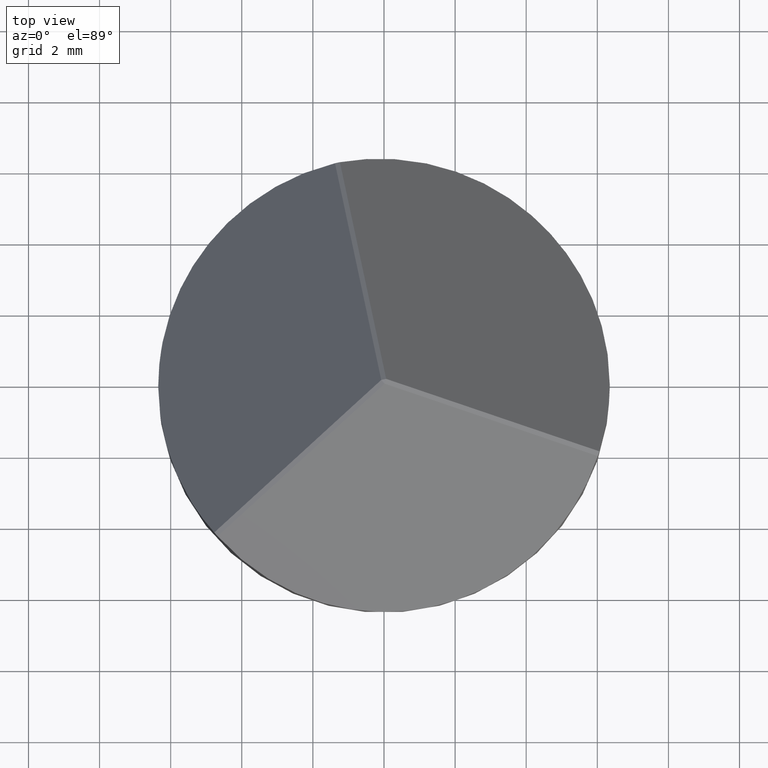
[diagram: clean part render]
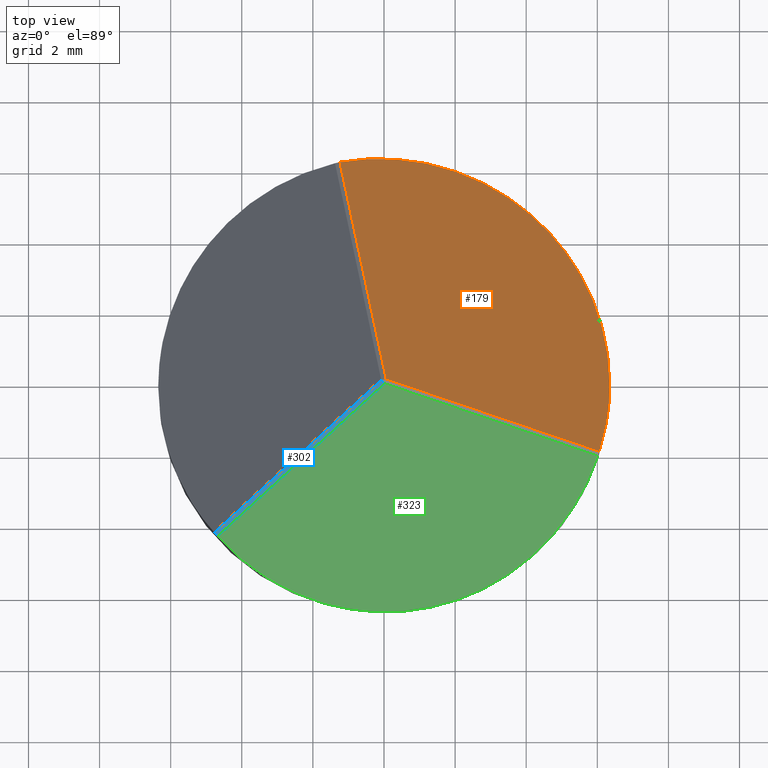
[diagram: same view with three faces highlighted in distinct colors, each labeled with its STEP entity id]
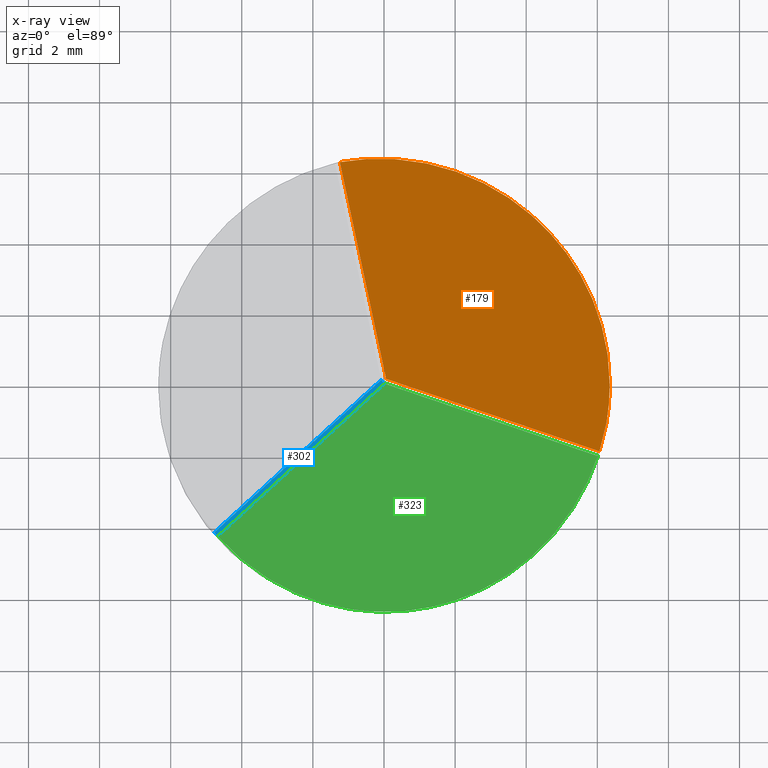
[diagram: x-ray of the same camera — body ghosted, the three highlighted faces saturated]
A machine part, top view with three faces highlighted in distinct colors.
The next image is the same camera in x-ray (body ghosted, the three faces saturated) — at least one of them is partly hidden behind the body in this view.
Their STEP definitions:

[orange] entity #179 — the highlighted planar face has unit normal (0.6077, 0.5453, 0.5774).
#4 = EDGE_CURVE ( 'NONE', #5, #20, #69, .T. ) ;
#5 = VERTEX_POINT ( 'NONE', #224 ) ;
#7 = PLANE ( 'NONE',  #146 ) ;
#15 = ORIENTED_EDGE ( 'NONE', *, *, #40, .T. ) ;
#20 = VERTEX_POINT ( 'NONE', #174 ) ;
#22 = LINE ( 'NONE', #194, #233 ) ;
#29 = DIRECTION ( 'NONE',  ( 0.7760903269836917362, -0.2536739462952649071, -0.5773502691896258421 ) ) ;
#40 = EDGE_CURVE ( 'NONE', #20, #166, #120, .T. ) ;
#62 = CARTESIAN_POINT ( 'NONE',  ( 6.349999999999999645, -0.6476245182123647748, 3.417607508736823618 ) ) ;
#64 = CARTESIAN_POINT ( 'NONE',  ( 3.329848234806675578, 2.987642285018690114, 3.163376020178194636 ) ) ;
#69 =( BOUNDED_CURVE ( )  B_SPLINE_CURVE ( 3, ( #311, #117, #62, #198 ),
 .UNSPECIFIED., .F., .F. ) 
 B_SPLINE_CURVE_WITH_KNOTS ( ( 4, 4 ),
 ( 5.247123525991987059, 5.551902276905597233 ),
 .UNSPECIFIED. ) 
 CURVE ( )  GEOMETRIC_REPRESENTATION_ITEM ( )  RATIONAL_B_SPLINE_CURVE ( ( 1.000000000000000000, 0.9922741279781082113, 0.9922741279781082113, 1.000000000000000000 ) ) 
 REPRESENTATION_ITEM ( '' )  );
#91 = VERTEX_POINT ( 'NONE', #316 ) ;
#103 = DIRECTION ( 'NONE',  ( 0.1683570817218965066, -0.7989509119468813925, 0.5773502691896256200 ) ) ;
#117 = CARTESIAN_POINT ( 'NONE',  ( 6.251690436881996327, -1.287743840205808121, 4.125649633596847110 ) ) ;
#120 =( BOUNDED_CURVE ( )  B_SPLINE_CURVE ( 3, ( #177, #127, #128, #351 ),
 .UNSPECIFIED., .F., .T. ) 
 B_SPLINE_CURVE_WITH_KNOTS ( ( 4, 4 ),
 ( 5.551902276905597233, 7.319247088367185405 ),
 .UNSPECIFIED. ) 
 CURVE ( )  GEOMETRIC_REPRESENTATION_ITEM ( )  RATIONAL_B_SPLINE_CURVE ( ( 1.000000000000000000, 0.7562109254666702363, 0.7562109254666702363, 1.000000000000000000 ) ) 
 REPRESENTATION_ITEM ( '' )  );
#127 = CARTESIAN_POINT ( 'NONE',  ( 6.349999999999997868, 4.327731766911852240, -1.281354842135801420 ) ) ;
#128 = CARTESIAN_POINT ( 'NONE',  ( 3.004345022847742186, 7.072882950397804791, -0.3522861678321642098 ) ) ;
#139 = LINE ( 'NONE', #247, #168 ) ;
#146 = AXIS2_PLACEMENT_3D ( 'NONE', #64, #292, #350 ) ;
#164 = EDGE_LOOP ( 'NONE', ( #346, #307, #358, #15 ) ) ;
#166 = VERTEX_POINT ( 'NONE', #237 ) ;
#168 = VECTOR ( 'NONE', #103, 1000.000000000000000 ) ;
#174 = CARTESIAN_POINT ( 'NONE',  ( 6.349999999999999645, 7.776507174585692163E-16, 2.805960210696949897 ) ) ;
#177 = CARTESIAN_POINT ( 'NONE',  ( 6.349999999999999645, 7.776507174585692163E-16, 2.805960210696949897 ) ) ;
#179 = ADVANCED_FACE ( 'NONE', ( #262 ), #7, .T. ) ;
#194 = CARTESIAN_POINT ( 'NONE',  ( 4.235462525477924345, -1.310016928385321133, 6.269017013437423458 ) ) ;
#198 = CARTESIAN_POINT ( 'NONE',  ( 6.349999999999999645, 7.776507174585692163E-16, 2.805960210696949897 ) ) ;
#224 = CARTESIAN_POINT ( 'NONE',  ( 6.057349891955519539, -1.905521526098945984, 4.913675856748688453 ) ) ;
#233 = VECTOR ( 'NONE', #29, 1000.000000000000114 ) ;
#237 = CARTESIAN_POINT ( 'NONE',  ( -1.240062539693432386, 6.227739951029511722, 4.913675856748684900 ) ) ;
#247 = CARTESIAN_POINT ( 'NONE',  ( -0.8448409661450687613, 4.352186909969169903, 6.269017013437423458 ) ) ;
#262 = FACE_OUTER_BOUND ( 'NONE', #164, .T. ) ;
#273 = EDGE_CURVE ( 'NONE', #166, #91, #139, .T. ) ;
#292 = DIRECTION ( 'NONE',  ( 0.6077332452617950631, 0.5452769656516157637, 0.5773502691896260641 ) ) ;
#307 = ORIENTED_EDGE ( 'NONE', *, *, #347, .T. ) ;
#311 = CARTESIAN_POINT ( 'NONE',  ( 6.057349891955519539, -1.905521526098945984, 4.913675856748688453 ) ) ;
#316 = CARTESIAN_POINT ( 'NONE',  ( 0.06077332452617782710, 0.05452769656515735197, 9.374658006696654056 ) ) ;
#346 = ORIENTED_EDGE ( 'NONE', *, *, #273, .T. ) ;
#347 = EDGE_CURVE ( 'NONE', #91, #5, #22, .T. ) ;
#350 = DIRECTION ( 'NONE',  ( 0.6887517733186869773, 0.000000000000000000, -0.7249972377536095802 ) ) ;
#351 = CARTESIAN_POINT ( 'NONE',  ( -1.240062539693432386, 6.227739951029511722, 4.913675856748684900 ) ) ;
#358 = ORIENTED_EDGE ( 'NONE', *, *, #4, .T. ) ;

[blue] entity #302 — the highlighted planar face has unit normal (0.4297, 0.3856, -0.8165).
#1 = LINE ( 'NONE', #305, #44 ) ;
#9 = CARTESIAN_POINT ( 'NONE',  ( -4.773349735908086977, -4.187795637170729002, 4.913675856748671578 ) ) ;
#26 = ORIENTED_EDGE ( 'NONE', *, *, #112, .F. ) ;
#44 = VECTOR ( 'NONE', #144, 1000.000000000000000 ) ;
#45 = DIRECTION ( 'NONE',  ( 0.6077332452617950631, 0.5452769656516159857, 0.5773502691896258421 ) ) ;
#46 = FACE_OUTER_BOUND ( 'NONE', #148, .T. ) ;
#48 = CARTESIAN_POINT ( 'NONE',  ( -4.678904995037518333, -4.293058122994954040, 4.913675856748721316 ) ) ;
#56 = ORIENTED_EDGE ( 'NONE', *, *, #315, .F. ) ;
#57 = CARTESIAN_POINT ( 'NONE',  ( -3.252239202108308636, -3.013009679648218420, 6.269017013437423458 ) ) ;
#87 = VERTEX_POINT ( 'NONE', #236 ) ;
#90 = DIRECTION ( 'NONE',  ( -0.6077332452617949521, -0.5452769656516159857, -0.5773502691896258421 ) ) ;
#96 = VECTOR ( 'NONE', #45, 999.9999999999998863 ) ;
#102 = VECTOR ( 'NONE', #284, 1000.000000000000114 ) ;
#112 = EDGE_CURVE ( 'NONE', #216, #333, #205, .T. ) ;
#113 = LINE ( 'NONE', #279, #102 ) ;
#119 = PLANE ( 'NONE',  #227 ) ;
#132 = CARTESIAN_POINT ( 'NONE',  ( -3.346683942978864401, -2.907747193824007592, 6.269017013437424346 ) ) ;
#144 = DIRECTION ( 'NONE',  ( -0.6678251671697826852, 0.7443181753085515995, 1.225326322964467107E-14 ) ) ;
#148 = EDGE_LOOP ( 'NONE', ( #163, #246, #26, #56 ) ) ;
#158 = LINE ( 'NONE', #132, #96 ) ;
#163 = ORIENTED_EDGE ( 'NONE', *, *, #356, .T. ) ;
#169 = CARTESIAN_POINT ( 'NONE',  ( -4.773349735908086977, -4.187795637170729002, 4.913675856748671578 ) ) ;
#205 =( BOUNDED_CURVE ( )  B_SPLINE_CURVE ( 3, ( #353, #313, #291, #9 ),
 .UNSPECIFIED., .F., .F. ) 
 B_SPLINE_CURVE_WITH_KNOTS ( ( 4, 4 ),
 ( 6.272049537170597766, 6.294321077188597791 ),
 .UNSPECIFIED. ) 
 CURVE ( )  GEOMETRIC_REPRESENTATION_ITEM ( )  RATIONAL_B_SPLINE_CURVE ( ( 1.000000000000000000, 0.9999586653025819283, 0.9999586653025819283, 1.000000000000000000 ) ) 
 REPRESENTATION_ITEM ( '' )  );
#216 = VERTEX_POINT ( 'NONE', #48 ) ;
#227 = AXIS2_PLACEMENT_3D ( 'NONE', #57, #228, #90 ) ;
#228 = DIRECTION ( 'NONE',  ( 0.4297322988771166696, 0.3855690400370883619, -0.8164965809277260345 ) ) ;
#236 = CARTESIAN_POINT ( 'NONE',  ( 0.01683570817218900048, -0.07989509119468835019, 9.374658006696654056 ) ) ;
#238 = EDGE_CURVE ( 'NONE', #333, #309, #158, .T. ) ;
#246 = ORIENTED_EDGE ( 'NONE', *, *, #238, .F. ) ;
#255 = CARTESIAN_POINT ( 'NONE',  ( -0.07760903269836713636, 0.02536739462952273053, 9.374658006696655832 ) ) ;
#279 = CARTESIAN_POINT ( 'NONE',  ( -3.252239202108307747, -3.013009679648218864, 6.269017013437423458 ) ) ;
#284 = DIRECTION ( 'NONE',  ( -0.6077332452617949521, -0.5452769656516160968, -0.5773502691896258421 ) ) ;
#291 = CARTESIAN_POINT ( 'NONE',  ( -4.742259540638737114, -4.223232986133281130, 4.913304656743203935 ) ) ;
#302 = ADVANCED_FACE ( 'NONE', ( #46 ), #119, .F. ) ;
#305 = CARTESIAN_POINT ( 'NONE',  ( -0.07760903269836687268, 0.02536739462952296645, 9.374658006696655832 ) ) ;
#309 = VERTEX_POINT ( 'NONE', #255 ) ;
#313 = CARTESIAN_POINT ( 'NONE',  ( -4.710776659013161449, -4.258321931798978000, 4.913304656743203935 ) ) ;
#315 = EDGE_CURVE ( 'NONE', #87, #216, #113, .T. ) ;
#333 = VERTEX_POINT ( 'NONE', #169 ) ;
#353 = CARTESIAN_POINT ( 'NONE',  ( -4.678904995037518333, -4.293058122994954040, 4.913675856748721316 ) ) ;
#356 = EDGE_CURVE ( 'NONE', #87, #309, #1, .T. ) ;

[green] entity #323 — the highlighted planar face has unit normal (0.1684, -0.799, 0.5774).
#27 = DIRECTION ( 'NONE',  ( 0.1683570817218968951, -0.7989509119468813925, 0.5773502691896257311 ) ) ;
#36 = AXIS2_PLACEMENT_3D ( 'NONE', #55, #27, #84 ) ;
#41 = CARTESIAN_POINT ( 'NONE',  ( 6.013412275601540458, -2.039944313858767178, 4.913675856748647597 ) ) ;
#48 = CARTESIAN_POINT ( 'NONE',  ( -4.678904995037518333, -4.293058122994954040, 4.913675856748721316 ) ) ;
#50 = EDGE_LOOP ( 'NONE', ( #73, #145, #137 ) ) ;
#55 = CARTESIAN_POINT ( 'NONE',  ( 0.9224499988434377018, -4.377554304598697321, 3.163376020178191528 ) ) ;
#71 = CARTESIAN_POINT ( 'NONE',  ( -1.020309708082639988, -8.280476711917241772, -1.671065411290767244 ) ) ;
#73 = ORIENTED_EDGE ( 'NONE', *, *, #196, .T. ) ;
#78 = LINE ( 'NONE', #155, #326 ) ;
#84 = DIRECTION ( 'NONE',  ( 0.000000000000000000, -0.5857106597838060980, -0.8105202175242876006 ) ) ;
#87 = VERTEX_POINT ( 'NONE', #236 ) ;
#102 = VECTOR ( 'NONE', #284, 1000.000000000000114 ) ;
#113 = LINE ( 'NONE', #279, #102 ) ;
#116 = FACE_OUTER_BOUND ( 'NONE', #50, .T. ) ;
#137 = ORIENTED_EDGE ( 'NONE', *, *, #251, .T. ) ;
#145 = ORIENTED_EDGE ( 'NONE', *, *, #315, .T. ) ;
#155 = CARTESIAN_POINT ( 'NONE',  ( 4.191524909123934606, -1.444439716145166752, 6.269017013437423458 ) ) ;
#171 = CARTESIAN_POINT ( 'NONE',  ( 6.013412275601540458, -2.039944313858767178, 4.913675856748647597 ) ) ;
#196 = EDGE_CURVE ( 'NONE', #306, #87, #78, .T. ) ;
#216 = VERTEX_POINT ( 'NONE', #48 ) ;
#225 = PLANE ( 'NONE',  #36 ) ;
#236 = CARTESIAN_POINT ( 'NONE',  ( 0.01683570817218900048, -0.07989509119468835019, 9.374658006696654056 ) ) ;
#243 = DIRECTION ( 'NONE',  ( -0.7760903269836918472, 0.2536739462952650181, 0.5773502691896257311 ) ) ;
#251 = EDGE_CURVE ( 'NONE', #216, #306, #286, .T. ) ;
#275 = CARTESIAN_POINT ( 'NONE',  ( -4.678904995037518333, -4.293058122994954040, 4.913675856748721316 ) ) ;
#279 = CARTESIAN_POINT ( 'NONE',  ( -3.252239202108307747, -3.013009679648218864, 6.269017013437423458 ) ) ;
#284 = DIRECTION ( 'NONE',  ( -0.6077332452617949521, -0.5452769656516160968, -0.5773502691896258421 ) ) ;
#286 =( BOUNDED_CURVE ( )  B_SPLINE_CURVE ( 3, ( #275, #71, #296, #41 ),
 .UNSPECIFIED., .F., .T. ) 
 B_SPLINE_CURVE_WITH_KNOTS ( ( 4, 4 ),
 ( 5.247123525991982618, 7.319247088367180964 ),
 .UNSPECIFIED. ) 
 CURVE ( )  GEOMETRIC_REPRESENTATION_ITEM ( )  RATIONAL_B_SPLINE_CURVE ( ( 1.000000000000000000, 0.6730751062543962604, 0.6730751062543962604, 1.000000000000000000 ) ) 
 REPRESENTATION_ITEM ( '' )  );
#296 = CARTESIAN_POINT ( 'NONE',  ( 4.274947424087382153, -7.164645908787126594, -1.671065411290801217 ) ) ;
#306 = VERTEX_POINT ( 'NONE', #171 ) ;
#315 = EDGE_CURVE ( 'NONE', #87, #216, #113, .T. ) ;
#323 = ADVANCED_FACE ( 'NONE', ( #116 ), #225, .T. ) ;
#326 = VECTOR ( 'NONE', #243, 999.9999999999998863 ) ;